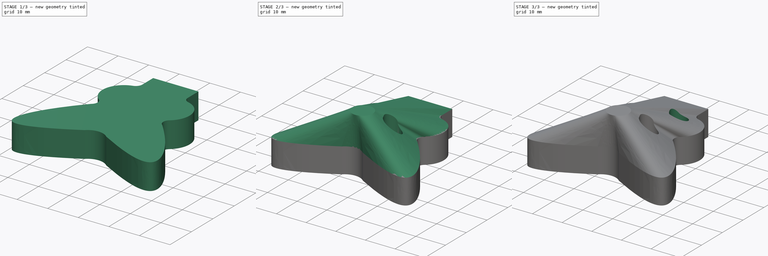
[diagram: build sequence overview — one tinted view per stage of 3, left to right]
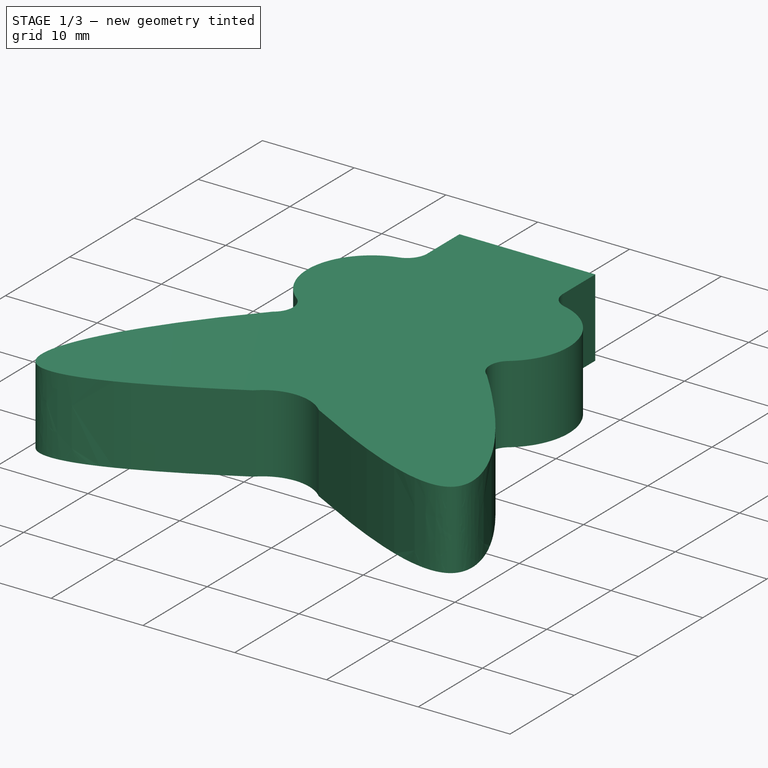
[diagram: stage 1 of 3 — iso view after this stage's code; geometry added in this stage tinted green]
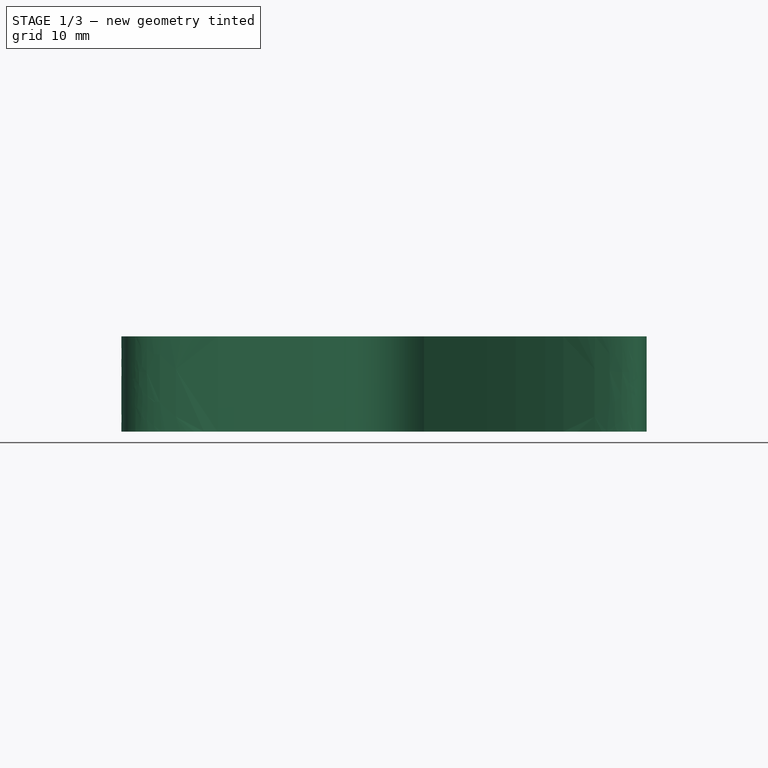
[diagram: stage 1 of 3 — front view after this stage's code; geometry added in this stage tinted green]
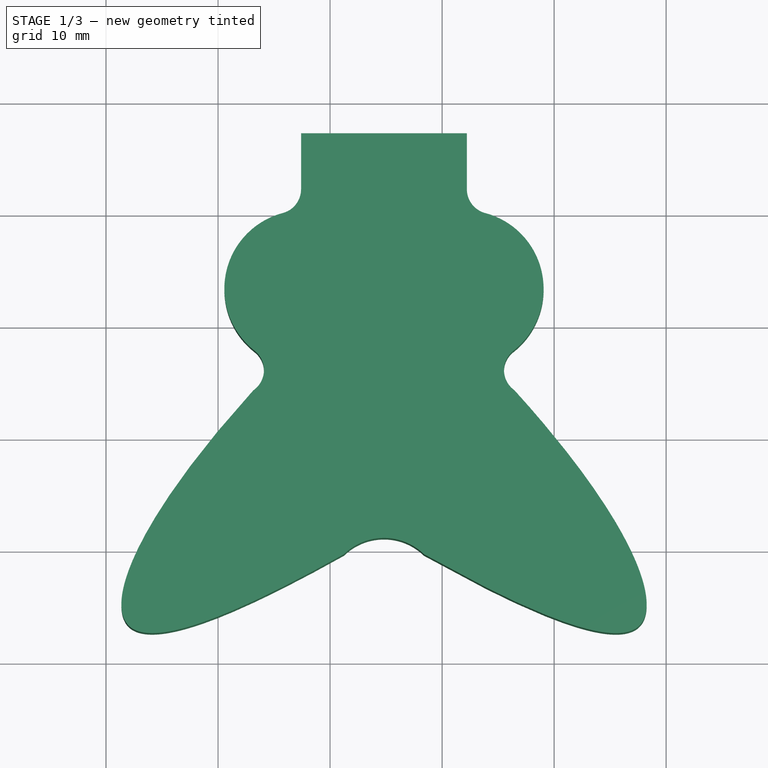
[diagram: stage 1 of 3 — top view after this stage's code; geometry added in this stage tinted green]
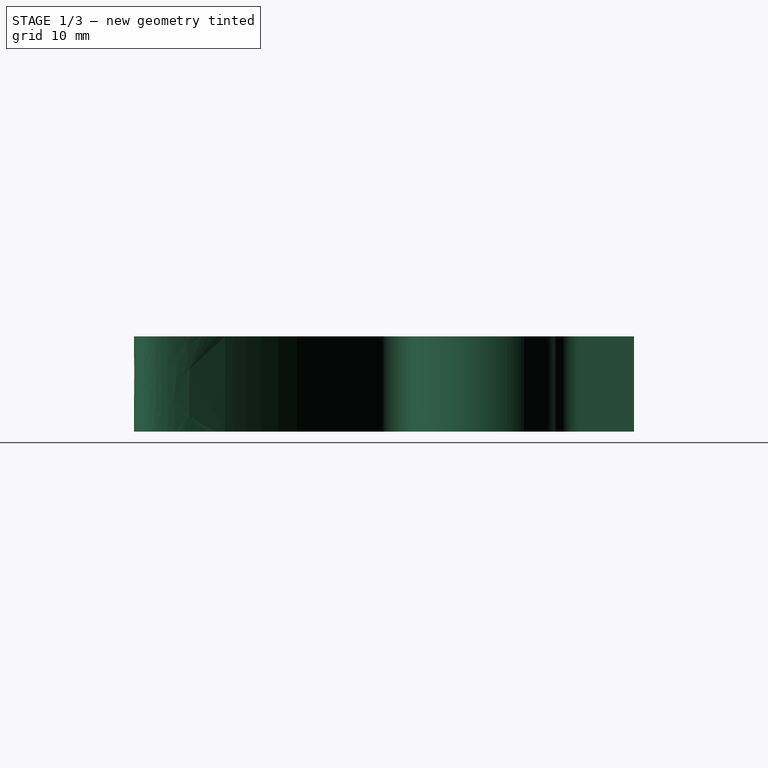
[diagram: stage 1 of 3 — right view after this stage's code; geometry added in this stage tinted green]
FCSTD DOCUMENT  (FreeCAD 1.0R39109 (Git))
Label: Tracev3
License: All rights reserved
LicenseURL: https://en.wikipedia.org/wiki/All_rights_reserved
objects: Sketcher::SketchObject×6, PartDesign::Pocket×4, Image::ImagePlane×1, App::VarSet×1, PartDesign::Pad×1, PartDesign::AdditiveLoft×1, PartDesign::Body×1
note: 31 computed .brp shape members not serialized (recipe doc carries the construction recipe); baked Part::Feature solids carry a one-line shape summary decoded from their .brp

FEATURE [Image::ImagePlane] photo_2025_04_16_00_33_11  label="photo_2025-04-16_00-33-11"
  XSize = 45.84
  YSize = 61.1
FEATURE [Sketcher::SketchObject] Sketch
  ArcFitTolerance = 1e-06
  AttachmentSupport = -> [XY_Plane]
  FullyConstrained = false
  MakeInternals = false
  MapMode = 5
  expr: Constraints[0] = <<Arm>>.Diameter
  expr: Constraints[1] = <<Arm>>.Diameter
  expr: Constraints[2] = <<Arm>>.Diameter
  expr: Constraints[3] = <<Arm>>.Diameter
  expr: Constraints[4] = <<Arm>>.Diameter
  expr: Constraints[5] = <<Arm>>.Diameter
  expr: Constraints[6] = <<Arm>>.Diameter
  expr: Constraints[7] = <<Arm>>.Diameter
  expr: Constraints[8] = <<Arm>>.Diameter
  sketch-geometry (17):
    g0: ArcOfCircle CenterX=-2.43833 CenterY=3.34466 CenterZ=0 NormalX=0 NormalY=0 NormalZ=1 AngleXU=0 Radius=4.6 StartAngle=1.82909 EndAngle=4.04922
    g1: ArcOfCircle CenterX=-2.43833 CenterY=-11.1553 CenterZ=0 NormalX=0 NormalY=0 NormalZ=1 AngleXU=0 Radius=4.6 StartAngle=2.23397 EndAngle=5.62001
    g2: ArcOfCircle CenterX=12.0617 CenterY=-11.1553 CenterZ=0 NormalX=0 NormalY=0 NormalZ=1 AngleXU=0 Radius=4.6 StartAngle=3.80476 EndAngle=7.19081
    g3: ArcOfCircle CenterX=12.0617 CenterY=3.34466 CenterZ=0 NormalX=0 NormalY=0 NormalZ=1 AngleXU=0 Radius=4.6 StartAngle=5.37556 EndAngle=7.59568
    g4: ArcOfCircle CenterX=-4.78833 CenterY=12.2395 CenterZ=0 NormalX=0 NormalY=0 NormalZ=1 AngleXU=0 Radius=4.6 StartAngle=4.97069 EndAngle=6.28319
    g5: ArcOfCircle CenterX=17.7254 CenterY=-3.90534 CenterZ=0 NormalX=0 NormalY=0 NormalZ=1 AngleXU=0 Radius=4.6 StartAngle=2.23397 EndAngle=4.04922
    g6: ArcOfCircle CenterX=-8.10203 CenterY=-3.90534 CenterZ=0 NormalX=0 NormalY=0 NormalZ=1 AngleXU=0 Radius=4.6 StartAngle=5.37556 EndAngle=7.19081
    g7: ArcOfCircle CenterX=4.81167 CenterY=-16.819 CenterZ=0 NormalX=0 NormalY=0 NormalZ=1 AngleXU=0 Radius=4.6 StartAngle=0.663172 EndAngle=2.47842
    g8: ArcOfCircle CenterX=14.4117 CenterY=12.2395 CenterZ=0 NormalX=0 NormalY=0 NormalZ=1 AngleXU=0 Radius=4.6 StartAngle=3.14159 EndAngle=4.45409
    g9: LineSegment [constr] StartX=-2.43833 StartY=3.34466 StartZ=0 EndX=-2.43833 EndY=-11.1553 EndZ=0
    g10: LineSegment [constr] StartX=-2.43833 StartY=-11.1553 StartZ=0 EndX=12.0617 EndY=-11.1553 EndZ=0
    g11: LineSegment [constr] StartX=12.0617 StartY=-11.1553 StartZ=0 EndX=12.0617 EndY=3.34466 EndZ=0
    g12: LineSegment [constr] StartX=12.0617 StartY=3.34466 StartZ=0 EndX=-2.43833 EndY=3.34466 EndZ=0
    g13: LineSegment [constr] StartX=-4.78833 StartY=12.2395 StartZ=0 EndX=14.4117 EndY=12.2395 EndZ=0
    g14: LineSegment StartX=-0.188328 StartY=17.2395 StartZ=0 EndX=-0.188328 EndY=12.2395 EndZ=0
    g15: LineSegment StartX=9.81167 StartY=12.2395 StartZ=0 EndX=9.81167 EndY=17.2395 EndZ=0
    g16: LineSegment StartX=9.81167 StartY=17.2395 StartZ=0 EndX=-0.188328 EndY=17.2395 EndZ=0
  constraints (47):
    c: Diameter(g8) = 9.2
    c: Diameter(g7) = 9.2
    c: Diameter(g1) = 9.2
    c: Diameter(g2) = 9.2
    c: Diameter(g6) = 9.2
    c: Diameter(g0) = 9.2
    c: Diameter(g4) = 9.2
    c: Diameter(g5) = 9.2
    c: Diameter(g3) = 9.2
    c: Coincident(g9,g10)
    c: Coincident(g10,g11)
    c: Coincident(g11,g12)
    c: Coincident(g12,g9)
    c: Vertical(g9)
    c: Vertical(g11)
    c: Horizontal(g10)
    c: Horizontal(g12)
    c: DistanceX(g12,g12) = 14.5
    c: DistanceY(g11,g11) = 14.5
    c: Coincident(g9,g0)
    c: Coincident(g3,g11)
    c: Coincident(g10,g2)
    c: Coincident(g1,g9)
    c: Tangent(g2,g5) = 1.5708
    c: Tangent(g7,g2) = 1.5708
    c: Tangent(g1,g7) = 1.5708
    c: Tangent(g6,g1) = 1.5708
    c: Tangent(g0,g6) = 1.5708
    c: Tangent(g3,g5) = 1.5708
    c: Horizontal(g13)
    c: Coincident(g8,g13)
    c: Coincident(g13,g4)
    c: Coincident(g15,g16)
    c: Coincident(g16,g14)
    c: Vertical(g14)
    c: Vertical(g15)
    c: Horizontal(g16)
    c: DistanceX(g14,g15) = 10
    c: DistanceY(g15,g15) = 5
    c: Tangent(g14,g4)
    c: PointOnObject(g14,g13)
    c: Tangent(g15,g8)
    c: PointOnObject(g4,g13)
    c: Tangent(g4,g0) = 1.5708
    c: Tangent(g8,g3) = 1.5708
    c: PointOnObject(g8,g13)
    c: PointOnObject(g15,g13)
FEATURE [App::VarSet] VarSet  label="Arm"
  Bolt = 3
  BoltHat = 5.5
  Diameter = 9.2
  OutsideDiameter = 14
FEATURE [Sketcher::SketchObject] Sketch001
  ArcFitTolerance = 1e-06
  AttachmentSupport = -> [XY_Plane]
  ExternalGeometry = -> [Sketch]
  FullyConstrained = false
  MakeInternals = false
  MapMode = 5
  sketch-geometry (31):
    g0: ArcOfCircle CenterX=-2.43833 CenterY=3.34466 CenterZ=0 NormalX=0 NormalY=0 NormalZ=1 AngleXU=0 Radius=7 StartAngle=1.82909 EndAngle=4.04922
    g1: ArcOfCircle CenterX=-8.10203 CenterY=-3.90534 CenterZ=0 NormalX=0 NormalY=0 NormalZ=1 AngleXU=0 Radius=2.2 StartAngle=5.31771 EndAngle=7.19081
    g2: ArcOfCircle CenterX=17.7254 CenterY=-3.90534 CenterZ=0 NormalX=0 NormalY=0 NormalZ=1 AngleXU=0 Radius=2.2 StartAngle=2.23397 EndAngle=4.09511
    g3: ArcOfCircle CenterX=12.0617 CenterY=3.34466 CenterZ=0 NormalX=0 NormalY=0 NormalZ=1 AngleXU=0 Radius=7 StartAngle=5.37556 EndAngle=7.59568
    g4: ArcOfCircle CenterX=14.4117 CenterY=12.2395 CenterZ=0 NormalX=0 NormalY=0 NormalZ=1 AngleXU=0 Radius=2.2 StartAngle=3.14159 EndAngle=4.45409
    g5: ArcOfCircle CenterX=-4.78833 CenterY=12.2395 CenterZ=0 NormalX=0 NormalY=0 NormalZ=1 AngleXU=0 Radius=2.2 StartAngle=4.97069 EndAngle=6.28319
    g6: LineSegment StartX=-2.58833 StartY=17.2395 StartZ=0 EndX=-2.58833 EndY=12.2395 EndZ=0
    g7: LineSegment StartX=12.2117 StartY=12.2395 StartZ=0 EndX=12.2117 EndY=17.2395 EndZ=0
    g8: LineSegment StartX=12.2117 StartY=17.2395 StartZ=0 EndX=-2.58833 EndY=17.2395 EndZ=0
    g9: LineSegment [constr] StartX=23.9427 StartY=15.2256 StartZ=0 EndX=-31.0467 EndY=-39.7637 EndZ=0
    g10: LineSegment [constr] StartX=44.6012 StartY=-43.6949 StartZ=0 EndX=-7.41633 EndY=8.32266 EndZ=0
    g11-g15: Circle [constr] x5 (B-spline internal-alignment scaffolding for g16; pole/knot coordinates omitted)
    g16: BSplineCurve PolesCount=5 KnotsCount=3 Degree=3 IsPeriodic=0
    g17: GeomPoint [constr] X=-6.85017 Y=-5.71444 Z=0
    g18: GeomPoint [constr] X=-17.9892 Y=-26.7062 Z=0
    g19: GeomPoint [constr] X=1.24066 Y=-20.3437 Z=0
    g20-g24: Circle [constr] x5 (B-spline internal-alignment scaffolding for g25; pole/knot coordinates omitted)
    g25: BSplineCurve PolesCount=5 KnotsCount=3 Degree=3 IsPeriodic=0
    g26: GeomPoint [constr] X=8.38269 Y=-20.3437 Z=0
    g27: GeomPoint [constr] X=27.618 Y=-26.7117 Z=0
    g28: GeomPoint [constr] X=16.452 Y=-5.69934 Z=0
    g29: ArcOfCircle CenterX=4.81167 CenterY=-24.0002 CenterZ=0 NormalX=0 NormalY=0 NormalZ=1 AngleXU=0 Radius=5.11099 StartAngle=0.797227 EndAngle=2.34437
    g30: LineSegment [constr] StartX=4.81167 StartY=-8.14068 StartZ=0 EndX=4.81167 EndY=-25.08 EndZ=0
  constraints (55):
    c: Coincident(g0,g-9)
    c: Coincident(g1,g-6)
    c: Coincident(g2,g-7)
    c: Coincident(g3,g-8)
    c: Coincident(g4,g-11)
    c: Coincident(g5,g-10)
    c: Diameter(g0) = 14
    c: Diameter(g3) = 14
    c: Coincident(g7,g8)
    c: Coincident(g8,g6)
    c: Vertical(g6)
    c: Vertical(g7)
    c: Horizontal(g8)
    c: PointOnObject(g-12,g8)
    c: Coincident(g4,g7)
    c: Tangent(g5,g6) = 1.5708
    c: Tangent(g3,g4) = 1.5708
    c: Coincident(g2,g3)
    c: Coincident(g0,g1)
    c: Tangent(g0,g5) = 1.5708
    c: PointOnObject(g3,g9)
    c: PointOnObject(g0,g10)
    c: Weight(g11) = 1
    c: Equal(g11,g12)
    c: Equal(g11,g13)
    c: Equal(g11,g14)
    c: InternalAlignment(g11-g15 -> g16) x5
    c: InternalAlignment(g17,g16)
    c: InternalAlignment(g18,g16)
    c: InternalAlignment(g19,g16)
    c: PointOnObject(g13,g9)
    c: Symmetric(g14,g12,g9)
    c: Weight(g20) = 1
    c: Equal(g20, g21-g24) x4
    c: InternalAlignment(g20-g24 -> g25) x5
    c: InternalAlignment(g26,g25)
    c: InternalAlignment(g27,g25)
    c: InternalAlignment(g28,g25)
    c: PointOnObject(g22,g10)
    c: Symmetric(g23,g21,g10)
    c: Distance(g12,g14) = 12.5
    c: Distance(g23,g21) = 12.5
    c: Distance(g-3,g27) = 22
    c: Distance(g-3,g22) = 30
    c: PointOnObject(g-5,g9)
    c: PointOnObject(g-3,g10)
    c: Coincident(g25,g2)
    c: Coincident(g16,g1)
    c: Vertical(g30)
    c: Symmetric(g16,g25,g30)
    c: Distance(g2,g-7) = 2.4
    c: Distance(g1,g-6) = 2.4
    c: PointOnObject(g-4,g30)
    c: Coincident(g29,g25)
    c: Coincident(g29,g16)
FEATURE [PartDesign::Pad] Pad
  Direction = (0,0,1)
  Length = 8.5
  Length2 = 10
  Profile = -> Sketch001
  ReferenceAxis = -> Sketch001 [N_Axis]
  Refine = true
  Suppressed = false
  Type = 0
FEATURE [PartDesign::Pocket] Pocket
  BaseFeature = -> Pad
  Direction = (0,0,-1)
  Length = 6
  Length2 = 5
  Profile = -> Sketch
  ReferenceAxis = -> Sketch [N_Axis]
  Refine = true
  Reversed = true
  Suppressed = false
  Type = 0
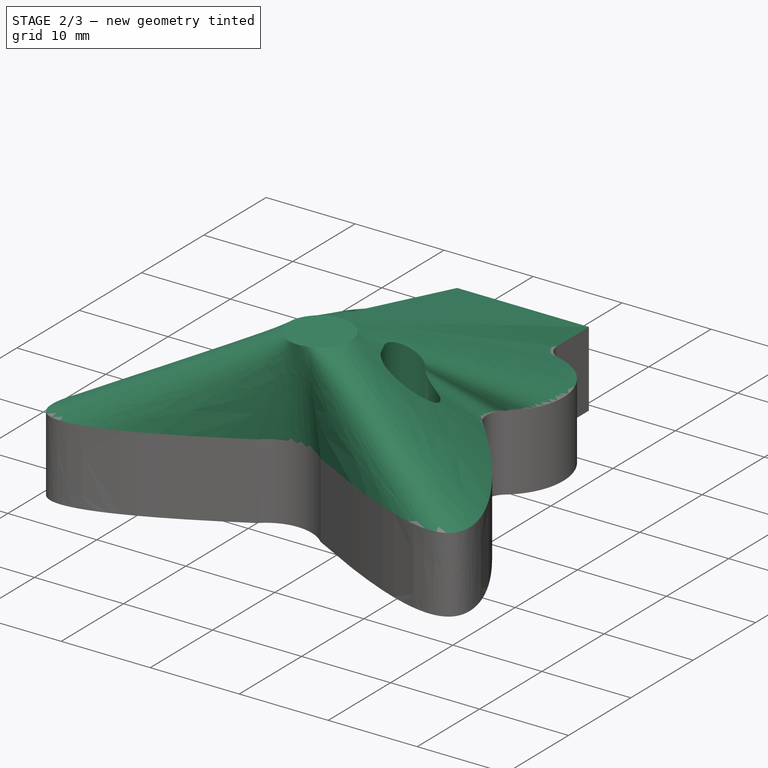
[diagram: stage 2 of 3 — iso view after this stage's code; geometry added in this stage tinted green]
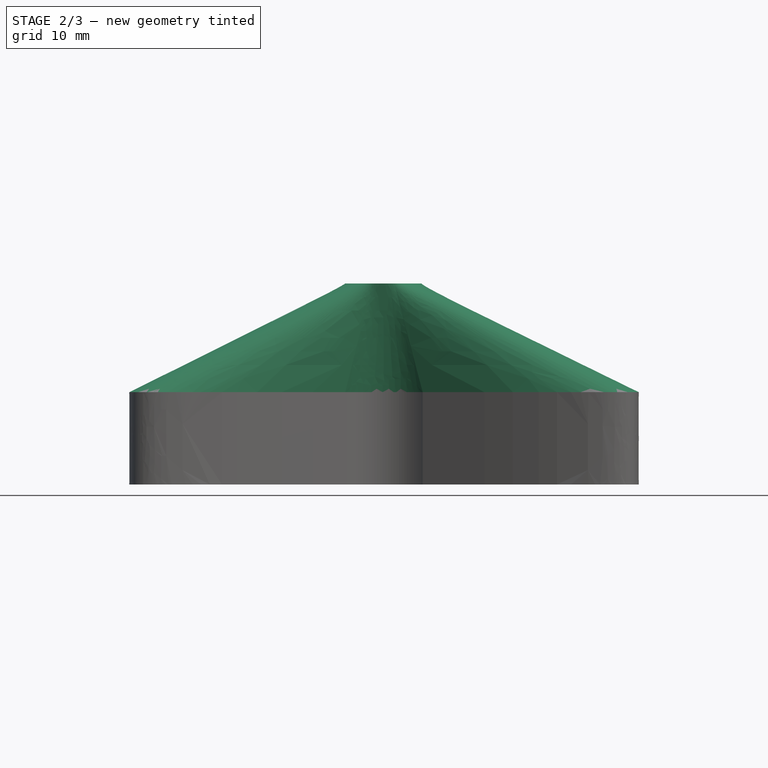
[diagram: stage 2 of 3 — front view after this stage's code; geometry added in this stage tinted green]
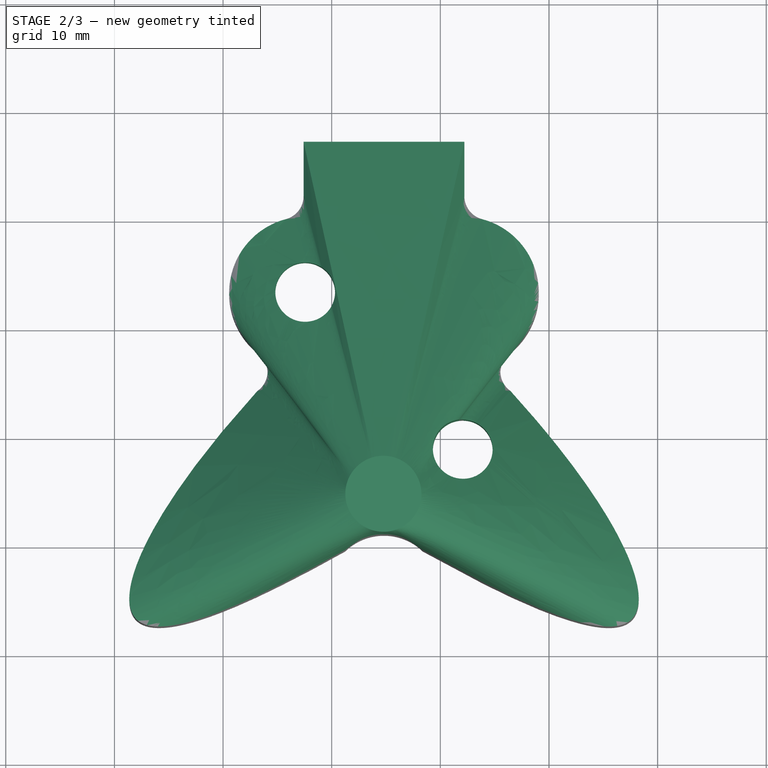
[diagram: stage 2 of 3 — top view after this stage's code; geometry added in this stage tinted green]
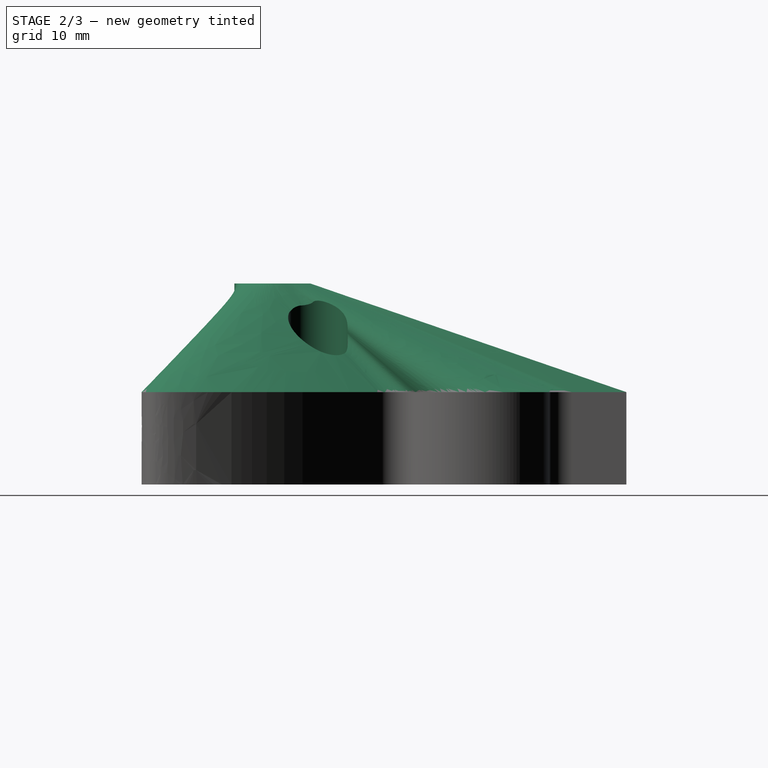
[diagram: stage 2 of 3 — right view after this stage's code; geometry added in this stage tinted green]
FEATURE [Sketcher::SketchObject] Sketch002
  ArcFitTolerance = 1e-06
  AttachmentSupport = -> [XY_Plane]
  ExternalGeometry = -> [Sketch]
  FullyConstrained = false
  MakeInternals = false
  MapMode = 5
  expr: Constraints[3] = <<Arm>>.Bolt
  expr: Constraints[4] = <<Arm>>.Bolt
  expr: Constraints[5] = <<Arm>>.Bolt
  expr: Constraints[6] = <<Arm>>.Bolt
  sketch-geometry (4):
    g0: Circle CenterX=-2.43833 CenterY=3.34466 CenterZ=0 NormalX=0 NormalY=0 NormalZ=1 AngleXU=0 Radius=1.5
    g1: Circle CenterX=12.0617 CenterY=3.34466 CenterZ=0 NormalX=0 NormalY=0 NormalZ=1 AngleXU=0 Radius=1.5
    g2: Circle CenterX=12.0617 CenterY=-11.1553 CenterZ=0 NormalX=0 NormalY=0 NormalZ=1 AngleXU=0 Radius=1.5
    g3: Circle CenterX=-2.43833 CenterY=-11.1553 CenterZ=0 NormalX=0 NormalY=0 NormalZ=1 AngleXU=0 Radius=1.5
  constraints (7):
    c: Coincident(g0,g-3)
    c: Coincident(g1,g-6)
    c: Coincident(g2,g-5)
    c: Diameter(g0) = 3
    c: Diameter(g3) = 3
    c: Diameter(g1) = 3
    c: Diameter(g2) = 3
FEATURE [Sketcher::SketchObject] Sketch003
  ArcFitTolerance = 1e-06
  AttachmentOffset = pos=(0,0,10) rot=(0,0,1;0rad)
  AttachmentSupport = -> [Pocket]
  FullyConstrained = false
  MakeInternals = false
  MapMode = 5
  Placement = pos=(0,0,18.5) rot=(0,0,1;0rad)
  sketch-geometry (1):
    g0: Circle CenterX=4.75472 CenterY=-15.3431 CenterZ=0 NormalX=0 NormalY=0 NormalZ=1 AngleXU=0 Radius=3.5
  constraints (1):
    c: Diameter(g0) = 7
FEATURE [PartDesign::AdditiveLoft] AdditiveLoft
  BaseFeature = -> Pocket
  Closed = false
  Profile = -> Sketch003
  Refine = true
  Ruled = false
  Sections = -> [Pocket]
  Suppressed = false
FEATURE [Sketcher::SketchObject] Sketch004
  ArcFitTolerance = 1e-06
  AttachmentOffset = pos=(0,0,-20) rot=(0,0,1;0rad)
  AttachmentSupport = -> [AdditiveLoft]
  ExternalGeometry = -> [Sketch002]
  FullyConstrained = true
  MakeInternals = false
  MapMode = 5
  Placement = pos=(0,0,26) rot=(1,0,0;3.14159rad)
  expr: Constraints[2] = <<Arm>>.BoltHat
  expr: Constraints[3] = <<Arm>>.BoltHat
  sketch-geometry (2):
    g0: Circle CenterX=-2.43833 CenterY=-3.34466 CenterZ=0 NormalX=0 NormalY=0 NormalZ=1 AngleXU=0 Radius=2.75
    g1: Circle CenterX=12.0617 CenterY=11.1553 CenterZ=0 NormalX=0 NormalY=0 NormalZ=1 AngleXU=0 Radius=2.75
  constraints (4):
    c: Coincident(g0,g-4)
    c: Coincident(g1,g-3)
    c: Diameter(g1) = 5.5
    c: Diameter(g0) = 5.5
FEATURE [PartDesign::Pocket] Pocket001
  BaseFeature = -> AdditiveLoft
  Direction = (0,0,1)
  Length = 20
  Length2 = 5
  Profile = -> Sketch004
  ReferenceAxis = -> Sketch004 [N_Axis]
  Refine = true
  Reversed = true
  Suppressed = false
  Type = 0
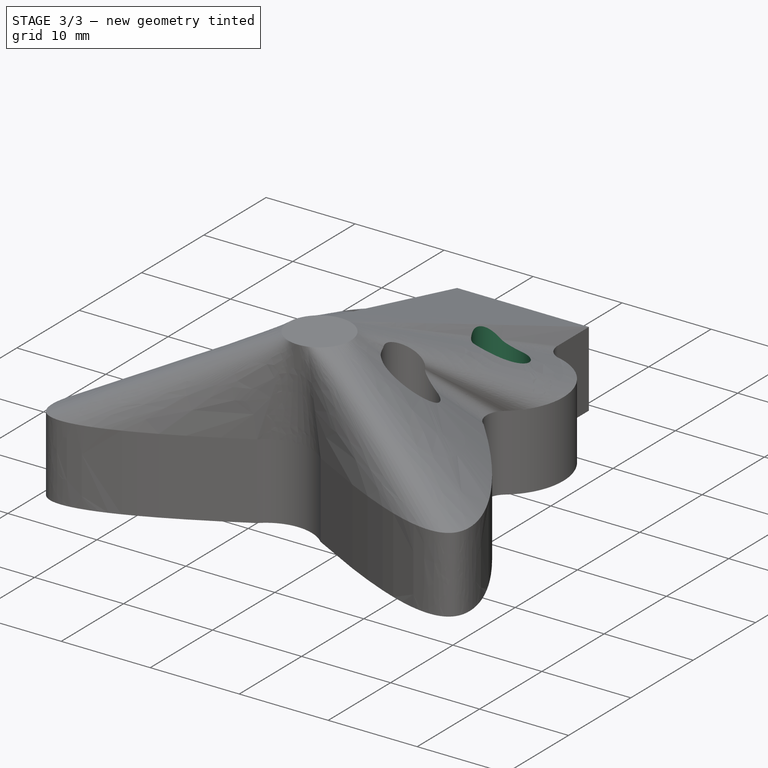
[diagram: stage 3 of 3 — iso view after this stage's code; geometry added in this stage tinted green]
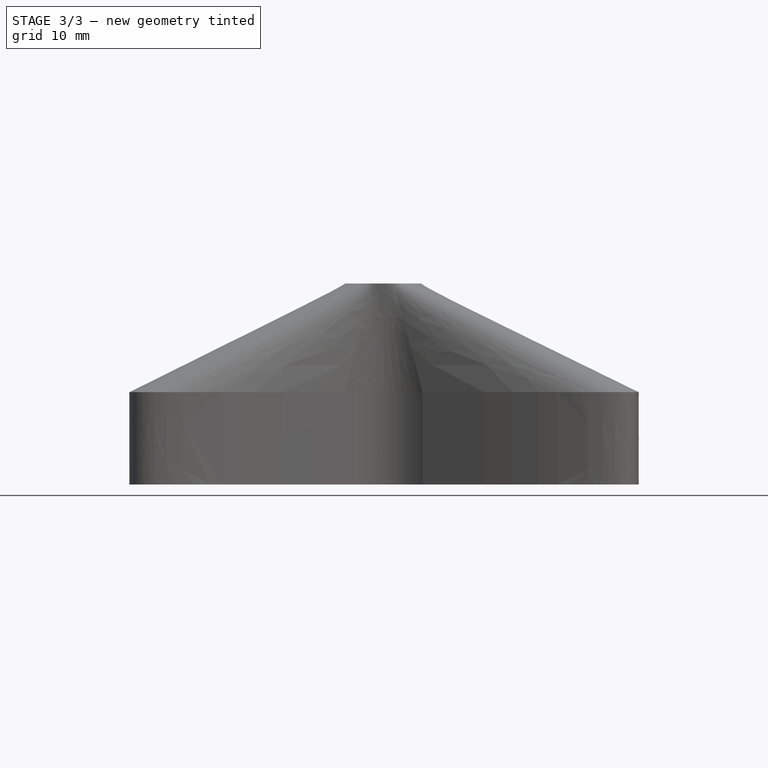
[diagram: stage 3 of 3 — front view after this stage's code; geometry added in this stage tinted green]
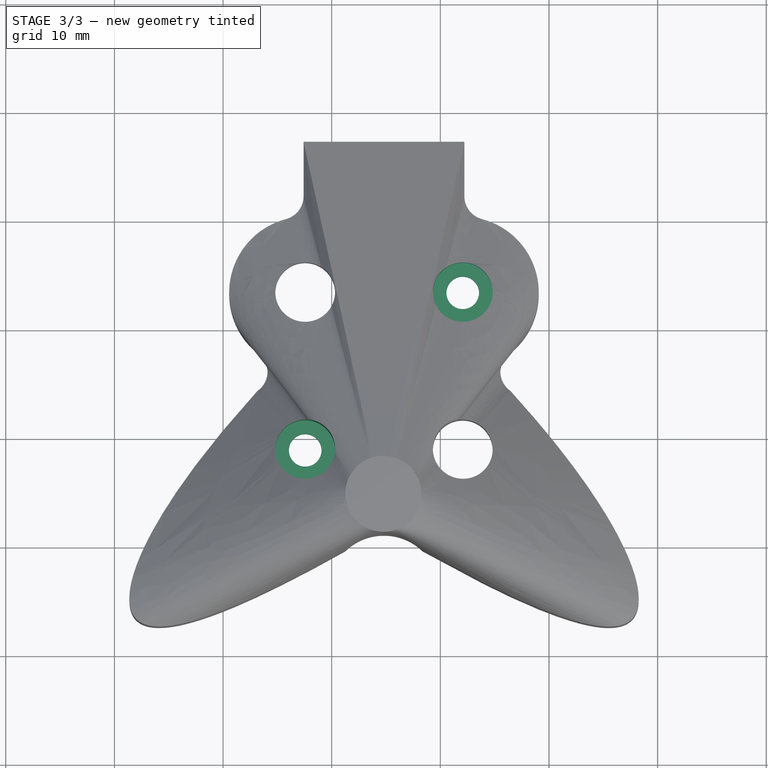
[diagram: stage 3 of 3 — top view after this stage's code; geometry added in this stage tinted green]
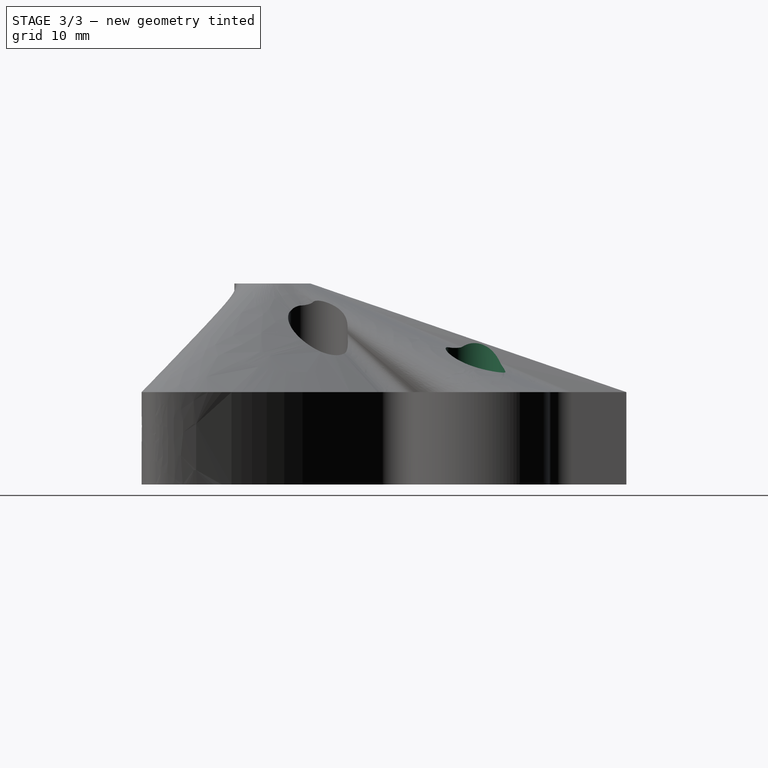
[diagram: stage 3 of 3 — right view after this stage's code; geometry added in this stage tinted green]
FEATURE [Sketcher::SketchObject] Sketch005
  ArcFitTolerance = 1e-06
  AttachmentOffset = pos=(0,0,-20) rot=(0,0,1;0rad)
  AttachmentSupport = -> [Pocket001]
  ExternalGeometry = -> [Sketch002]
  FullyConstrained = true
  MakeInternals = false
  MapMode = 5
  Placement = pos=(0,0,26) rot=(1,0,0;3.14159rad)
  expr: Constraints[2] = <<Arm>>.BoltHat
  expr: Constraints[3] = <<Arm>>.BoltHat
  sketch-geometry (2):
    g0: Circle CenterX=-2.43833 CenterY=11.1553 CenterZ=0 NormalX=0 NormalY=0 NormalZ=1 AngleXU=0 Radius=2.75
    g1: Circle CenterX=12.0617 CenterY=-3.34466 CenterZ=0 NormalX=0 NormalY=0 NormalZ=1 AngleXU=0 Radius=2.75
  constraints (4):
    c: Coincident(g0,g-3)
    c: Coincident(g1,g-4)
    c: Diameter(g0) = 5.5
    c: Diameter(g1) = 5.5
FEATURE [PartDesign::Pocket] Pocket002
  BaseFeature = -> Pocket001
  Direction = (0,0,1)
  Length = 18
  Length2 = 5
  Profile = -> Sketch005
  ReferenceAxis = -> Sketch005 [N_Axis]
  Refine = true
  Reversed = true
  Suppressed = false
  Type = 0
FEATURE [PartDesign::Pocket] Pocket003
  BaseFeature = -> Pocket002
  Direction = (0,0,-1)
  Length = 8
  Length2 = 5
  Profile = -> Sketch002
  ReferenceAxis = -> Sketch002 [N_Axis]
  Refine = true
  Reversed = true
  Suppressed = false
  Type = 0
FEATURE [PartDesign::Body] Body
  AllowCompound = false
  Group = -> [Sketch,VarSet,Sketch001,Pad,Pocket,Sketch002,Sketch003,AdditiveLoft,Sketch004,Pocket001,Sketch005,Pocket002,Pocket003]
  Origin = -> Origin
  Tip = -> Pocket003
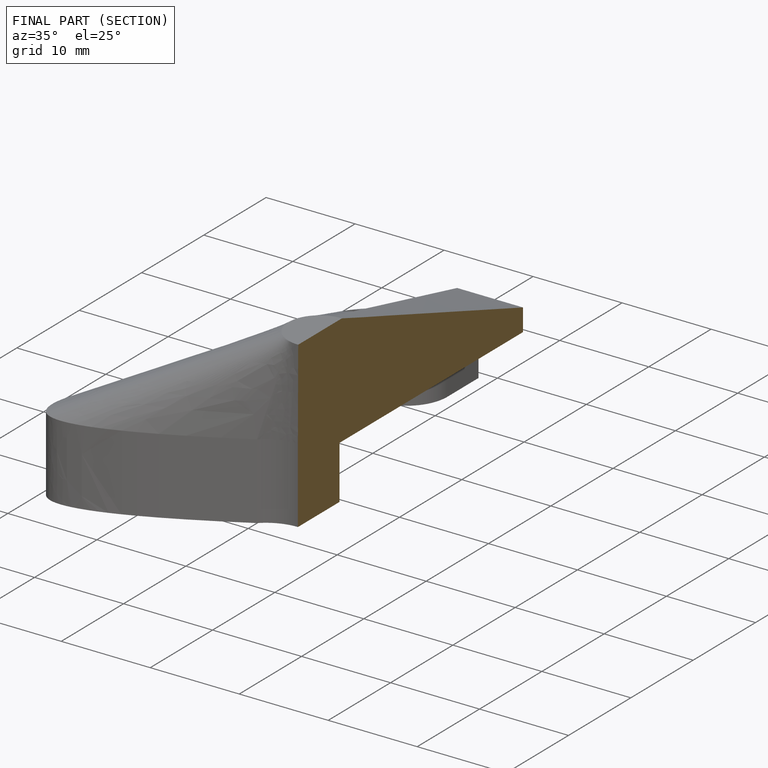
[diagram: finished part — half-section view (interior)]
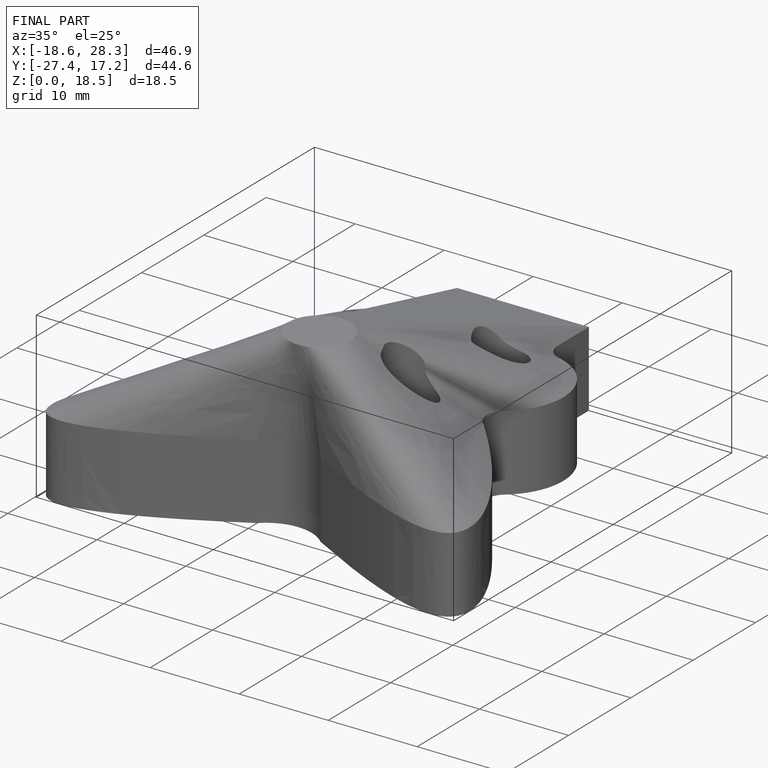
[diagram: finished part — iso view with bounding-box wireframe]
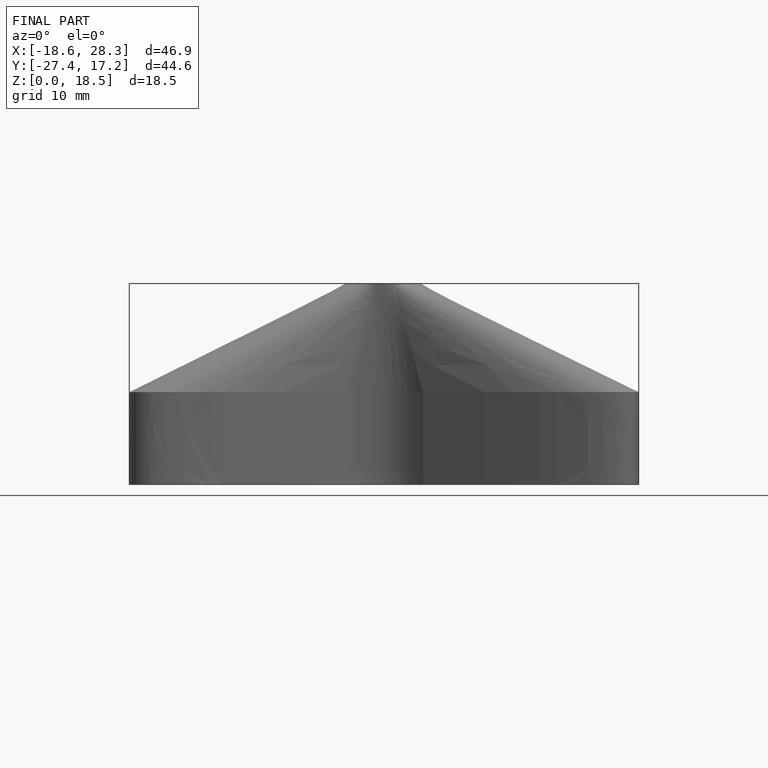
[diagram: finished part — front view with bounding-box wireframe]
